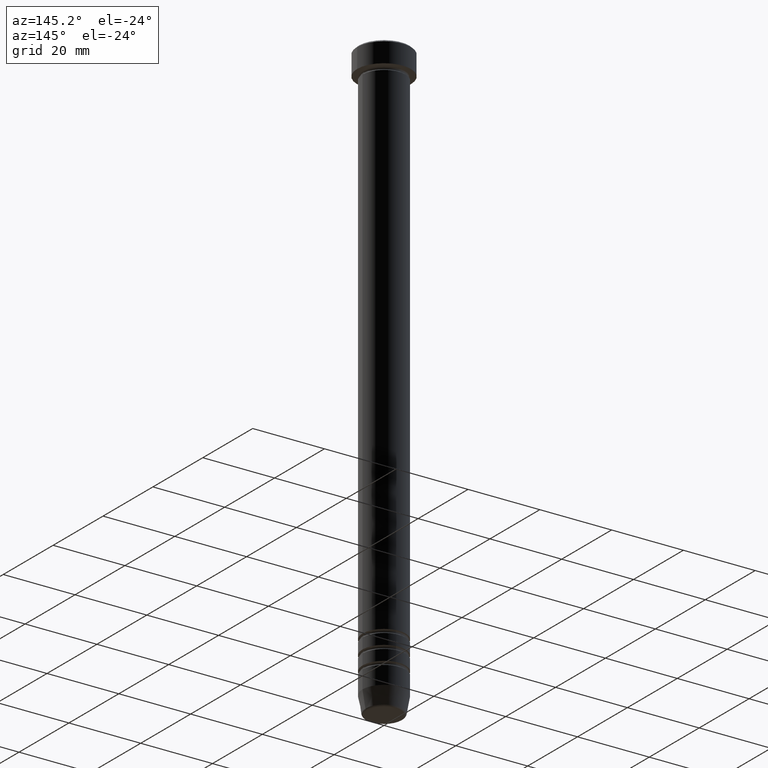
[diagram: clean part render]
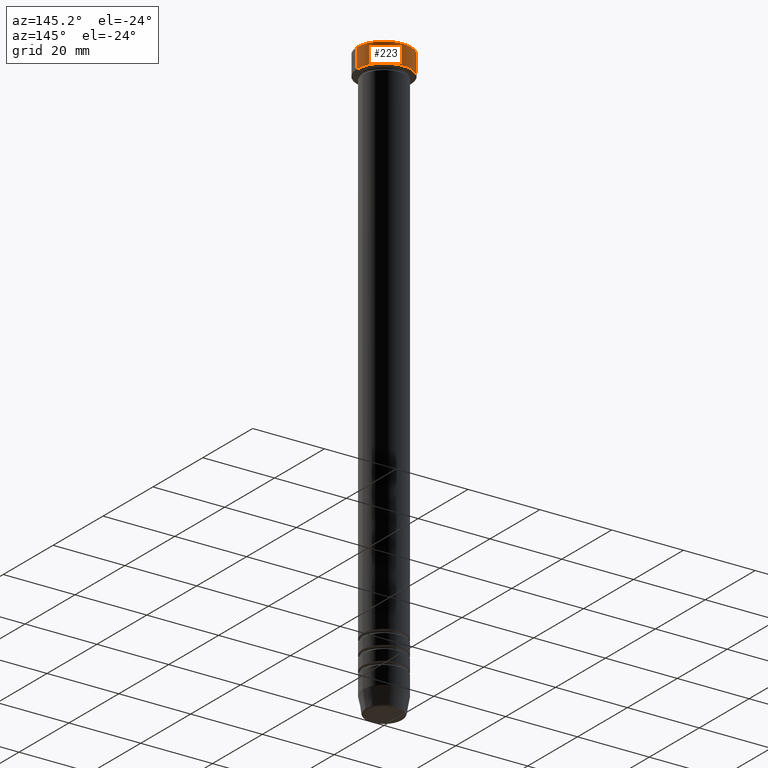
[diagram: same view with one face highlighted and labeled with its STEP entity id]
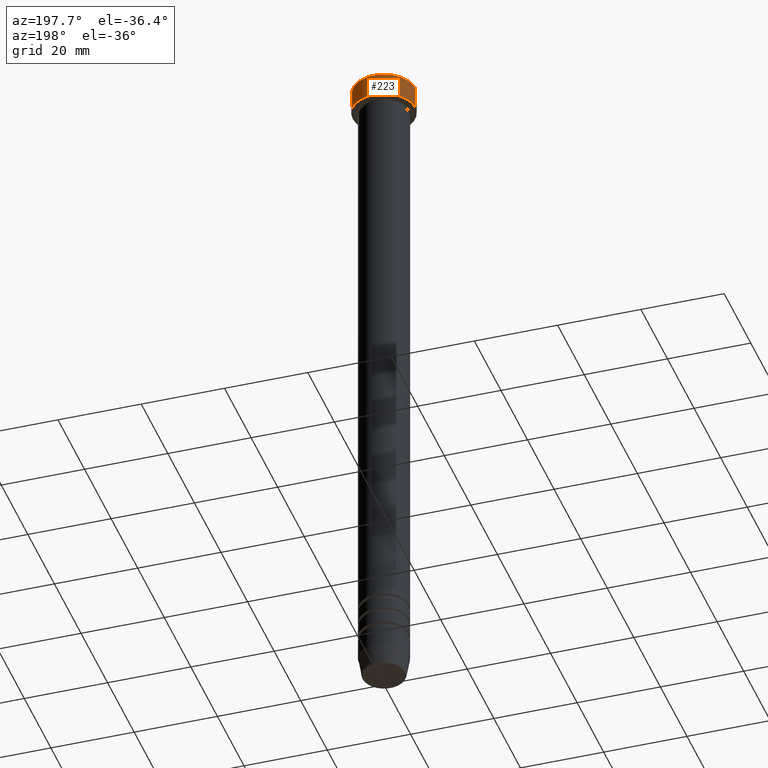
[diagram: same view with one face highlighted and labeled with its STEP entity id]
A machine part, auxiliary view. The second image highlights one B-rep face of the part: STEP entity #223.
A second angle (auxiliary view) of the same face is appended — the face is thin or edge-on in the first view.
In plain terms, the highlighted cylindrical surface (edge-blend (fillet) strip) has radius 7.5 mm, axis along (-0, -0, 1).
Its self-contained STEP definition (entity closure, byte-faithful):
#67 = ORIENTED_EDGE ( 'NONE', *, *, #189, .T. ) ;
#71 = DIRECTION ( 'NONE',  ( 1.000000000000000000, 0.000000000000000000, 0.000000000000000000 ) ) ;
#101 = EDGE_CURVE ( 'NONE', #1141, #509, #188, .T. ) ;
#142 = DIRECTION ( 'NONE',  ( -0.000000000000000000, -0.000000000000000000, 1.000000000000000000 ) ) ;
#150 = CYLINDRICAL_SURFACE ( 'NONE', #210, 7.500000000000000000 ) ;
#164 = CARTESIAN_POINT ( 'NONE',  ( -7.500000000000000000, 9.184850993605147944E-16, -6.000000000000000000 ) ) ;
#188 = CIRCLE ( 'NONE', #703, 7.500000000000000000 ) ;
#189 = EDGE_CURVE ( 'NONE', #481, #879, #924, .T. ) ;
#198 = EDGE_CURVE ( 'NONE', #509, #481, #1135, .T. ) ;
#210 = AXIS2_PLACEMENT_3D ( 'NONE', #598, #507, #71 ) ;
#220 = EDGE_LOOP ( 'NONE', ( #352, #566, #67, #599 ) ) ;
#223 = ADVANCED_FACE ( 'NONE', ( #949 ), #150, .T. ) ;
#273 = DIRECTION ( 'NONE',  ( -0.000000000000000000, -0.000000000000000000, 1.000000000000000000 ) ) ;
#327 = DIRECTION ( 'NONE',  ( 0.000000000000000000, 0.000000000000000000, -1.000000000000000000 ) ) ;
#348 = CARTESIAN_POINT ( 'NONE',  ( 7.500000000000000000, 0.000000000000000000, -0.4999999999999987232 ) ) ;
#352 = ORIENTED_EDGE ( 'NONE', *, *, #101, .T. ) ;
#402 = LINE ( 'NONE', #755, #848 ) ;
#416 = CARTESIAN_POINT ( 'NONE',  ( -7.500000000000000000, 9.184850993605147944E-16, 0.000000000000000000 ) ) ;
#481 = VERTEX_POINT ( 'NONE', #669 ) ;
#507 = DIRECTION ( 'NONE',  ( -0.000000000000000000, -0.000000000000000000, 1.000000000000000000 ) ) ;
#509 = VERTEX_POINT ( 'NONE', #164 ) ;
#566 = ORIENTED_EDGE ( 'NONE', *, *, #198, .T. ) ;
#598 = CARTESIAN_POINT ( 'NONE',  ( 0.000000000000000000, 0.000000000000000000, 0.000000000000000000 ) ) ;
#599 = ORIENTED_EDGE ( 'NONE', *, *, #750, .F. ) ;
#622 = CARTESIAN_POINT ( 'NONE',  ( 7.500000000000000000, 0.000000000000000000, -6.000000000000000000 ) ) ;
#669 = CARTESIAN_POINT ( 'NONE',  ( -7.500000000000000000, 9.184850993605147944E-16, -0.4999999999999987232 ) ) ;
#675 = CARTESIAN_POINT ( 'NONE',  ( 0.000000000000000000, 0.000000000000000000, -0.4999999999999987232 ) ) ;
#691 = DIRECTION ( 'NONE',  ( -0.000000000000000000, -0.000000000000000000, 1.000000000000000000 ) ) ;
#703 = AXIS2_PLACEMENT_3D ( 'NONE', #733, #273, #1094 ) ;
#733 = CARTESIAN_POINT ( 'NONE',  ( 0.000000000000000000, 0.000000000000000000, -6.000000000000000000 ) ) ;
#745 = AXIS2_PLACEMENT_3D ( 'NONE', #675, #327, #942 ) ;
#750 = EDGE_CURVE ( 'NONE', #1141, #879, #402, .T. ) ;
#755 = CARTESIAN_POINT ( 'NONE',  ( 7.500000000000000000, 0.000000000000000000, 0.000000000000000000 ) ) ;
#848 = VECTOR ( 'NONE', #142, 1000.000000000000000 ) ;
#879 = VERTEX_POINT ( 'NONE', #348 ) ;
#924 = CIRCLE ( 'NONE', #745, 7.500000000000000000 ) ;
#942 = DIRECTION ( 'NONE',  ( 1.000000000000000000, 0.000000000000000000, 0.000000000000000000 ) ) ;
#949 = FACE_OUTER_BOUND ( 'NONE', #220, .T. ) ;
#985 = VECTOR ( 'NONE', #691, 1000.000000000000000 ) ;
#1094 = DIRECTION ( 'NONE',  ( 1.000000000000000000, 0.000000000000000000, 0.000000000000000000 ) ) ;
#1135 = LINE ( 'NONE', #416, #985 ) ;
#1141 = VERTEX_POINT ( 'NONE', #622 ) ;